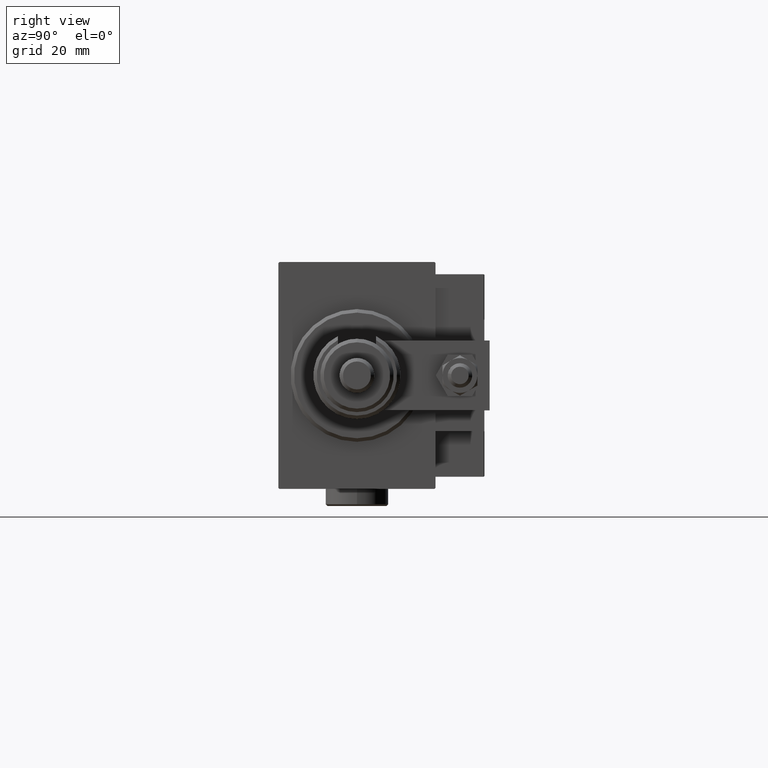
[diagram: clean part render]
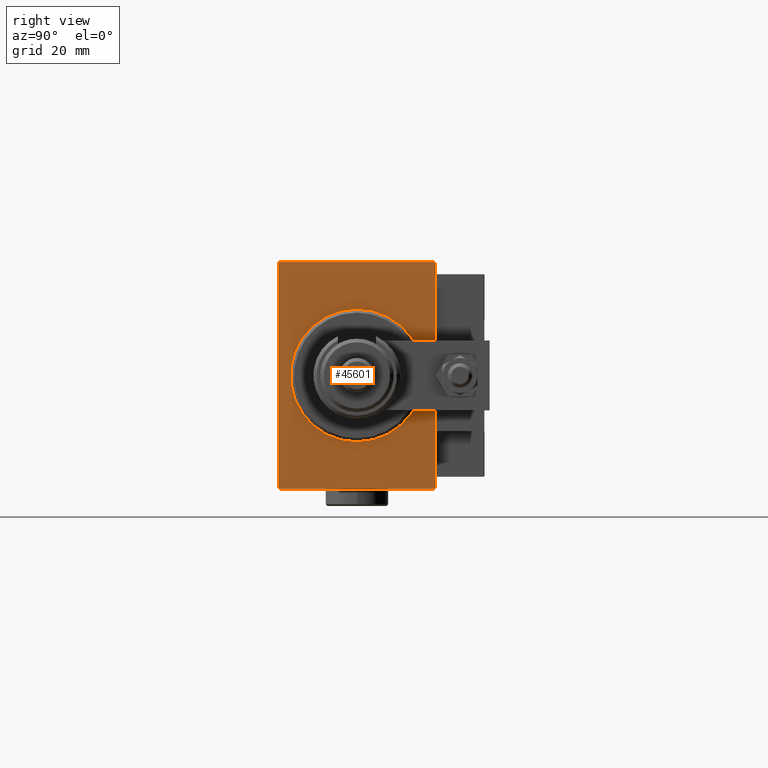
[diagram: same view with one face highlighted and labeled with its STEP entity id]
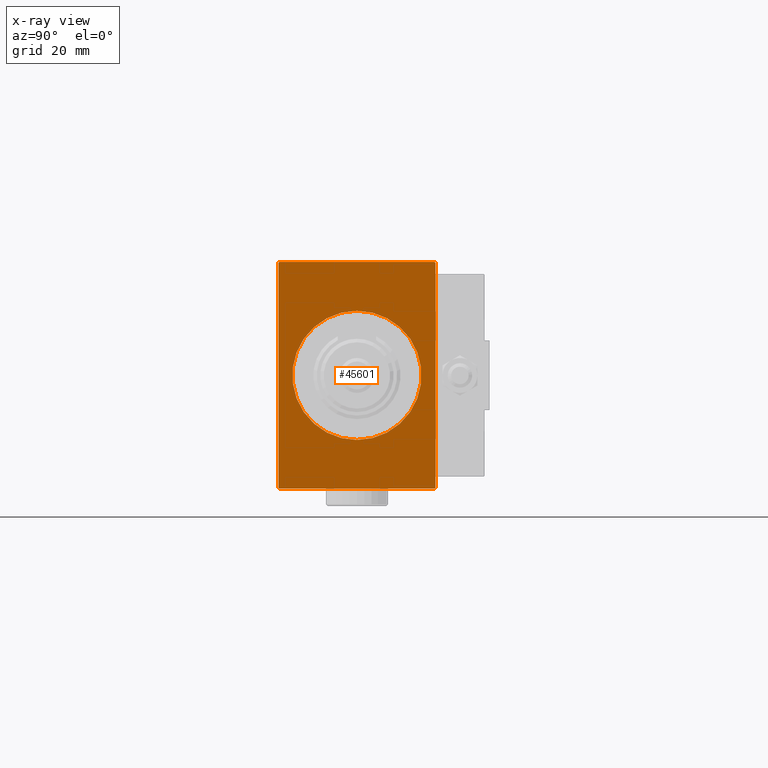
[diagram: x-ray of the same camera — body ghosted, the highlighted face saturated]
A machine part, right view. The second image highlights one B-rep face of the part: STEP entity #45601.
The next image is the same camera in x-ray: the body ghosted, the highlighted face saturated — about 0% of this face is hidden behind the body in this view.
In plain terms, the highlighted planar face has unit normal (-1, 0, 0).
Its self-contained STEP definition (entity closure, byte-faithful):
#51 = VERTEX_POINT ( 'NONE', #9565 ) ;
#109 = ORIENTED_EDGE ( 'NONE', *, *, #9368, .F. ) ;
#1217 = DIRECTION ( 'NONE',  ( 1.000000000000000000, 0.000000000000000000, 0.000000000000000000 ) ) ;
#1629 = CARTESIAN_POINT ( 'NONE',  ( 0.000000000000000000, 22.19999999999999929, 32.50000000000000711 ) ) ;
#2026 = DIRECTION ( 'NONE',  ( 0.000000000000000000, 0.000000000000000000, -1.000000000000000000 ) ) ;
#2684 = CIRCLE ( 'NONE', #25349, 18.50000000000000355 ) ;
#2777 = EDGE_CURVE ( 'NONE', #47810, #27245, #11718, .T. ) ;
#5014 = DIRECTION ( 'NONE',  ( -0.000000000000000000, 0.7071067811865393571, -0.7071067811865556774 ) ) ;
#5397 = DIRECTION ( 'NONE',  ( 0.000000000000000000, 1.000000000000000000, 0.000000000000000000 ) ) ;
#6597 = DIRECTION ( 'NONE',  ( -0.000000000000000000, 0.7071067811865474617, 0.7071067811865474617 ) ) ;
#7734 = EDGE_CURVE ( 'NONE', #17553, #51, #34019, .T. ) ;
#8410 = CARTESIAN_POINT ( 'NONE',  ( 0.000000000000000000, 2.265596578422603791E-15, -18.50000000000000355 ) ) ;
#8504 = CARTESIAN_POINT ( 'NONE',  ( 0.000000000000000000, 22.19999999999998153, -32.50000000000000000 ) ) ;
#9368 = EDGE_CURVE ( 'NONE', #38046, #43156, #50407, .T. ) ;
#9565 = CARTESIAN_POINT ( 'NONE',  ( 0.000000000000000000, -22.19999999999998863, 32.50000000000000000 ) ) ;
#11222 = CARTESIAN_POINT ( 'NONE',  ( 0.000000000000000000, -22.49999999999999645, 32.20000000000000284 ) ) ;
#11696 = VECTOR ( 'NONE', #5014, 1000.000000000000000 ) ;
#11718 = LINE ( 'NONE', #32434, #22052 ) ;
#11928 = EDGE_CURVE ( 'NONE', #52955, #33516, #11972, .T. ) ;
#11972 = LINE ( 'NONE', #36260, #44322 ) ;
#12482 = DIRECTION ( 'NONE',  ( 0.000000000000000000, -1.000000000000000000, -1.541976423090495633E-16 ) ) ;
#13047 = CARTESIAN_POINT ( 'NONE',  ( 0.000000000000000000, -22.49999999999999645, -32.50000000000000000 ) ) ;
#13175 = CARTESIAN_POINT ( 'NONE',  ( 0.000000000000000000, 22.50000000000000355, -32.19999999999999574 ) ) ;
#13416 = DIRECTION ( 'NONE',  ( 1.000000000000000000, 0.000000000000000000, 0.000000000000000000 ) ) ;
#13744 = ORIENTED_EDGE ( 'NONE', *, *, #29885, .T. ) ;
#13853 = LINE ( 'NONE', #46601, #21333 ) ;
#14567 = ORIENTED_EDGE ( 'NONE', *, *, #31573, .T. ) ;
#15113 = AXIS2_PLACEMENT_3D ( 'NONE', #39405, #1217, #2026 ) ;
#16022 = PLANE ( 'NONE',  #34042 ) ;
#16813 = CARTESIAN_POINT ( 'NONE',  ( 0.000000000000000000, 0.000000000000000000, 0.000000000000000000 ) ) ;
#17369 = CARTESIAN_POINT ( 'NONE',  ( 0.000000000000000000, 22.49999999999999645, 32.50000000000000711 ) ) ;
#17553 = VERTEX_POINT ( 'NONE', #1629 ) ;
#17789 = CARTESIAN_POINT ( 'NONE',  ( 0.000000000000000000, -22.49999999999999645, -32.20000000000000284 ) ) ;
#19561 = EDGE_CURVE ( 'NONE', #35186, #24120, #2684, .T. ) ;
#20594 = EDGE_LOOP ( 'NONE', ( #28734, #21469 ) ) ;
#21325 = CARTESIAN_POINT ( 'NONE',  ( 0.000000000000000000, 0.000000000000000000, 0.000000000000000000 ) ) ;
#21333 = VECTOR ( 'NONE', #51494, 1000.000000000000114 ) ;
#21469 = ORIENTED_EDGE ( 'NONE', *, *, #51983, .T. ) ;
#22052 = VECTOR ( 'NONE', #24258, 1000.000000000000000 ) ;
#22118 = VECTOR ( 'NONE', #53575, 1000.000000000000114 ) ;
#22496 = CARTESIAN_POINT ( 'NONE',  ( 0.000000000000000000, -22.49999999999999645, 32.20000000000000284 ) ) ;
#23905 = ORIENTED_EDGE ( 'NONE', *, *, #2777, .F. ) ;
#24120 = VERTEX_POINT ( 'NONE', #8410 ) ;
#24258 = DIRECTION ( 'NONE',  ( 0.000000000000000000, -1.067522139062650425E-16, 1.000000000000000000 ) ) ;
#24915 = LINE ( 'NONE', #13175, #22118 ) ;
#25349 = AXIS2_PLACEMENT_3D ( 'NONE', #21325, #13416, #30045 ) ;
#27245 = VERTEX_POINT ( 'NONE', #50949 ) ;
#28734 = ORIENTED_EDGE ( 'NONE', *, *, #19561, .T. ) ;
#29335 = EDGE_CURVE ( 'NONE', #17553, #27245, #30110, .T. ) ;
#29590 = ORIENTED_EDGE ( 'NONE', *, *, #11928, .F. ) ;
#29885 = EDGE_CURVE ( 'NONE', #47810, #43156, #24915, .T. ) ;
#30045 = DIRECTION ( 'NONE',  ( 0.000000000000000000, 0.000000000000000000, -1.000000000000000000 ) ) ;
#30110 = LINE ( 'NONE', #32403, #11696 ) ;
#31573 = EDGE_CURVE ( 'NONE', #38046, #33516, #13853, .T. ) ;
#31880 = DIRECTION ( 'NONE',  ( 0.000000000000000000, 0.000000000000000000, -1.000000000000000000 ) ) ;
#32403 = CARTESIAN_POINT ( 'NONE',  ( 0.000000000000000000, 22.19999999999999929, 32.50000000000000711 ) ) ;
#32434 = CARTESIAN_POINT ( 'NONE',  ( 0.000000000000000000, 22.50000000000000355, -32.50000000000000000 ) ) ;
#32845 = VECTOR ( 'NONE', #12482, 1000.000000000000000 ) ;
#33200 = DIRECTION ( 'NONE',  ( 0.000000000000000000, 0.000000000000000000, -1.000000000000000000 ) ) ;
#33516 = VERTEX_POINT ( 'NONE', #17789 ) ;
#34019 = LINE ( 'NONE', #17369, #32845 ) ;
#34042 = AXIS2_PLACEMENT_3D ( 'NONE', #16813, #37824, #33200 ) ;
#34424 = EDGE_CURVE ( 'NONE', #52955, #51, #51879, .T. ) ;
#35186 = VERTEX_POINT ( 'NONE', #40018 ) ;
#36260 = CARTESIAN_POINT ( 'NONE',  ( 0.000000000000000000, -22.49999999999999645, 32.50000000000000000 ) ) ;
#37824 = DIRECTION ( 'NONE',  ( 1.000000000000000000, 0.000000000000000000, 0.000000000000000000 ) ) ;
#38046 = VERTEX_POINT ( 'NONE', #49684 ) ;
#38640 = CIRCLE ( 'NONE', #15113, 18.50000000000000355 ) ;
#39405 = CARTESIAN_POINT ( 'NONE',  ( 0.000000000000000000, 0.000000000000000000, 0.000000000000000000 ) ) ;
#40018 = CARTESIAN_POINT ( 'NONE',  ( 0.000000000000000000, 0.000000000000000000, 18.50000000000000355 ) ) ;
#43156 = VERTEX_POINT ( 'NONE', #8504 ) ;
#43166 = ORIENTED_EDGE ( 'NONE', *, *, #29335, .T. ) ;
#44322 = VECTOR ( 'NONE', #31880, 1000.000000000000000 ) ;
#45601 = ADVANCED_FACE ( 'NONE', ( #53389, #53909 ), #16022, .F. ) ;
#46601 = CARTESIAN_POINT ( 'NONE',  ( 0.000000000000000000, -22.19999999999999929, -32.50000000000000000 ) ) ;
#46706 = ORIENTED_EDGE ( 'NONE', *, *, #7734, .F. ) ;
#46810 = VECTOR ( 'NONE', #6597, 1000.000000000000114 ) ;
#47810 = VERTEX_POINT ( 'NONE', #50367 ) ;
#48157 = EDGE_LOOP ( 'NONE', ( #46706, #43166, #23905, #13744, #109, #14567, #29590, #50054 ) ) ;
#49684 = CARTESIAN_POINT ( 'NONE',  ( 0.000000000000000000, -22.19999999999999929, -32.50000000000000000 ) ) ;
#50054 = ORIENTED_EDGE ( 'NONE', *, *, #34424, .T. ) ;
#50266 = VECTOR ( 'NONE', #5397, 1000.000000000000000 ) ;
#50367 = CARTESIAN_POINT ( 'NONE',  ( 0.000000000000000000, 22.50000000000000355, -32.19999999999999574 ) ) ;
#50407 = LINE ( 'NONE', #13047, #50266 ) ;
#50949 = CARTESIAN_POINT ( 'NONE',  ( 0.000000000000000000, 22.49999999999999645, 32.20000000000000284 ) ) ;
#51494 = DIRECTION ( 'NONE',  ( -0.000000000000000000, -0.7071067811865474617, 0.7071067811865474617 ) ) ;
#51879 = LINE ( 'NONE', #11222, #46810 ) ;
#51983 = EDGE_CURVE ( 'NONE', #24120, #35186, #38640, .T. ) ;
#52955 = VERTEX_POINT ( 'NONE', #22496 ) ;
#53389 = FACE_BOUND ( 'NONE', #20594, .T. ) ;
#53575 = DIRECTION ( 'NONE',  ( 0.000000000000000000, -0.7071067811865474617, -0.7071067811865474617 ) ) ;
#53909 = FACE_OUTER_BOUND ( 'NONE', #48157, .T. ) ;